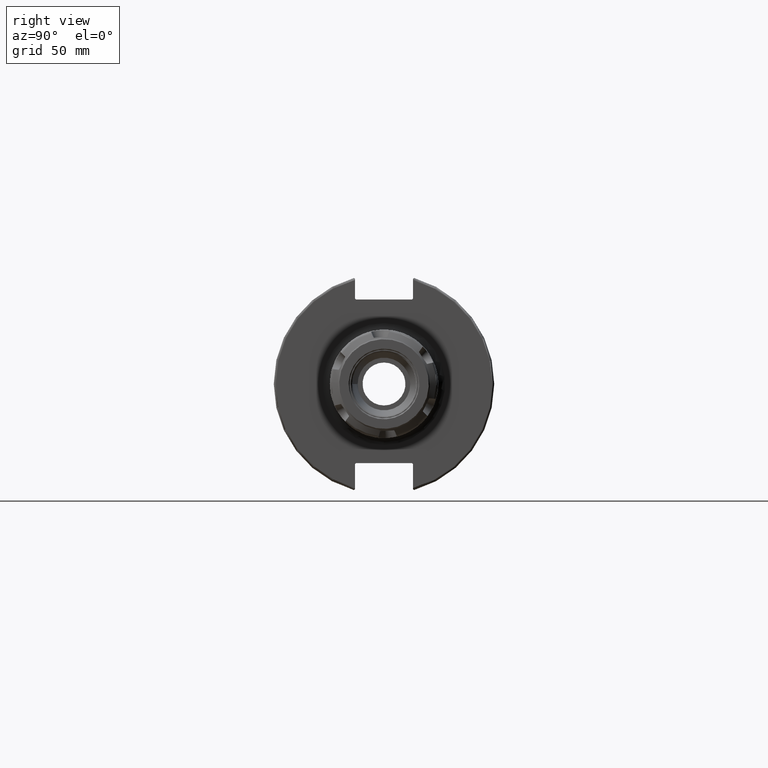
[diagram: clean part render]
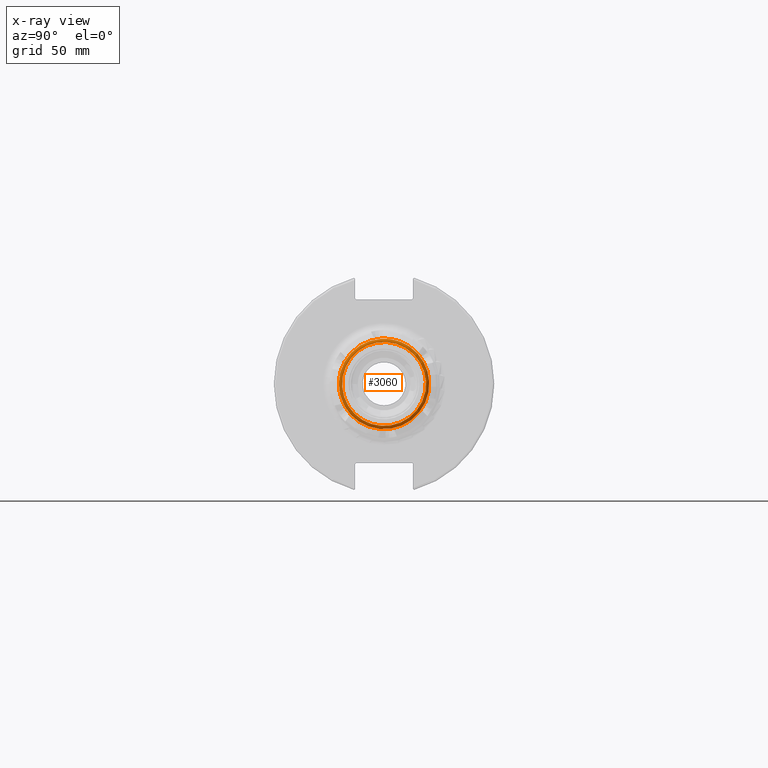
[diagram: x-ray — body ghosted, one internal face saturated and labeled with its STEP entity id]
A machine part, right view, then the same camera in x-ray: the body is ghosted and one INTERNAL B-rep face — a face not visible from any outside direction — is saturated and labeled: STEP entity #3060.
In plain terms, the highlighted toroidal blend (fillet) surface has major radius 18.7 mm and minor (blend) radius 1.5 mm.
Its self-contained STEP definition (entity closure, byte-faithful):
#831=FACE_OUTER_BOUND('',#1025,.T.);
#1025=EDGE_LOOP('',(#2865,#2866,#2867,#2868,#2869));
#1182=CIRCLE('',#3445,20.2);
#1183=CIRCLE('',#3446,20.2);
#1190=CIRCLE('',#3463,18.7);
#1191=CIRCLE('',#3465,1.49999999999999);
#1490=VERTEX_POINT('',#5992);
#1491=VERTEX_POINT('',#5993);
#1495=VERTEX_POINT('',#6020);
#1939=EDGE_CURVE('',#1490,#1491,#1182,.T.);
#1940=EDGE_CURVE('',#1491,#1490,#1183,.T.);
#1952=EDGE_CURVE('',#1495,#1495,#1190,.T.);
#1953=EDGE_CURVE('',#1495,#1491,#1191,.T.);
#2865=ORIENTED_EDGE('',*,*,#1952,.T.);
#2866=ORIENTED_EDGE('',*,*,#1953,.T.);
#2867=ORIENTED_EDGE('',*,*,#1939,.F.);
#2868=ORIENTED_EDGE('',*,*,#1940,.F.);
#2869=ORIENTED_EDGE('',*,*,#1953,.F.);
#2890=TOROIDAL_SURFACE('',#3464,18.7,1.49999999999999);
#3060=ADVANCED_FACE('',(#831),#2890,.F.);
#3445=AXIS2_PLACEMENT_3D('',#5994,#4273,#4274);
#3446=AXIS2_PLACEMENT_3D('',#5995,#4275,#4276);
#3463=AXIS2_PLACEMENT_3D('',#6021,#4314,#4315);
#3464=AXIS2_PLACEMENT_3D('',#6022,#4316,#4317);
#3465=AXIS2_PLACEMENT_3D('',#6023,#4318,#4319);
#4273=DIRECTION('center_axis',(1.,0.,0.));
#4274=DIRECTION('ref_axis',(0.,0.,-1.));
#4275=DIRECTION('center_axis',(1.,0.,0.));
#4276=DIRECTION('ref_axis',(0.,0.,-1.));
#4314=DIRECTION('center_axis',(1.,0.,0.));
#4315=DIRECTION('ref_axis',(0.,0.,-1.));
#4316=DIRECTION('center_axis',(1.,0.,0.));
#4317=DIRECTION('ref_axis',(0.,0.,-1.));
#4318=DIRECTION('center_axis',(0.,-1.,-1.22464679914735E-16));
#4319=DIRECTION('ref_axis',(0.,-1.22464679914735E-16,1.));
#5992=CARTESIAN_POINT('',(14.65,-20.2,-2.47378653427765E-15));
#5993=CARTESIAN_POINT('',(14.65,-2.47378653427765E-15,20.2));
#5994=CARTESIAN_POINT('Origin',(14.65,0.,0.));
#5995=CARTESIAN_POINT('Origin',(14.65,0.,0.));
#6020=CARTESIAN_POINT('',(16.15,-2.29008951440555E-15,18.7));
#6021=CARTESIAN_POINT('Origin',(16.15,0.,0.));
#6022=CARTESIAN_POINT('Origin',(14.65,0.,0.));
#6023=CARTESIAN_POINT('Origin',(14.65,-2.29008951440555E-15,18.7));